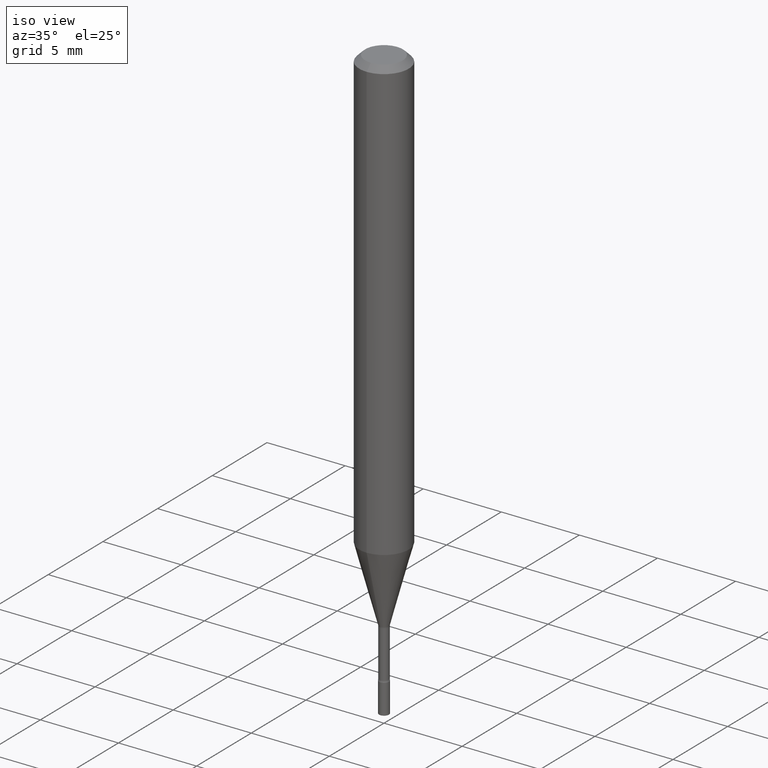
[diagram: clean part render]
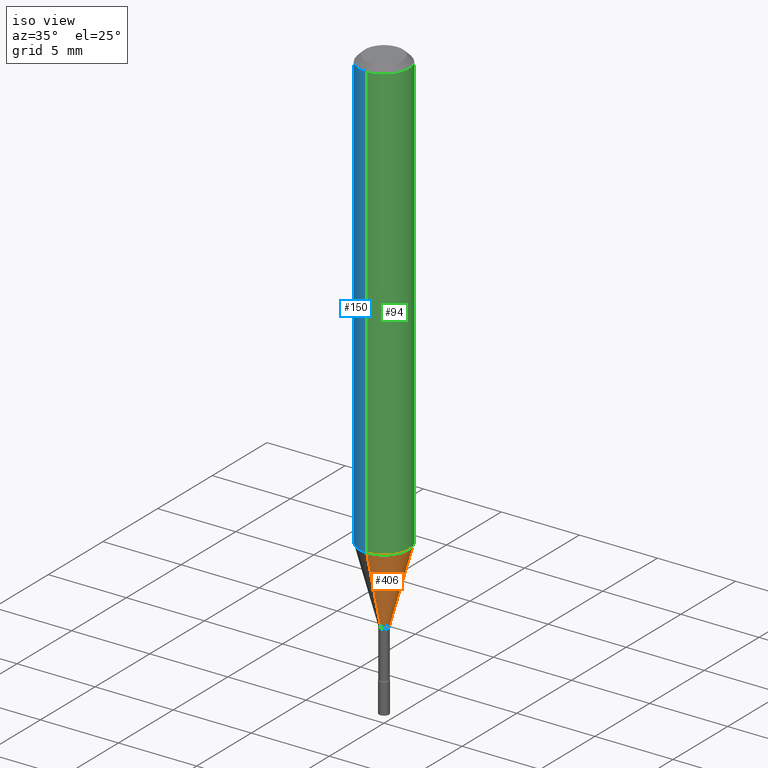
[diagram: same view with three faces highlighted in distinct colors, each labeled with its STEP entity id]
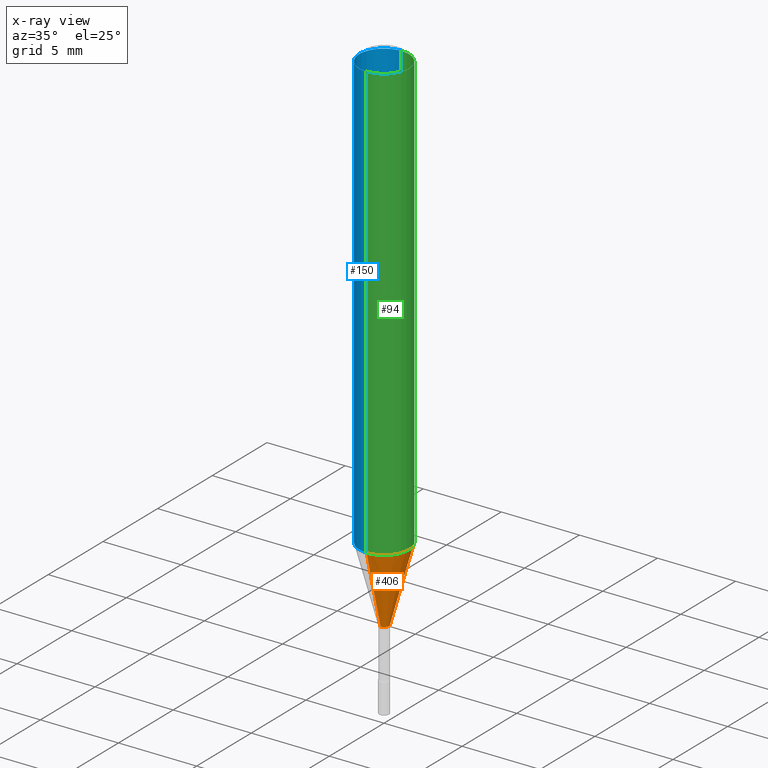
[diagram: x-ray of the same camera — body ghosted, the three highlighted faces saturated]
A machine part, iso view with three faces highlighted in distinct colors.
The next image is the same camera in x-ray (body ghosted, the three faces saturated) — at least one of them is partly hidden behind the body in this view.
Their STEP definitions:

[orange] entity #406 — the highlighted conical surface has half-angle 15 deg.
#14 = EDGE_LOOP ( 'NONE', ( #29, #400, #425, #182 ) ) ;
#15 = DIRECTION ( 'NONE',  ( -2.445346016029371458E-29, 3.491657181334983134E-15, 1.000000000000000000 ) ) ;
#20 = CIRCLE ( 'NONE', #503, 0.06250000000000000000 ) ;
#29 = ORIENTED_EDGE ( 'NONE', *, *, #444, .T. ) ;
#33 = LINE ( 'NONE', #477, #372 ) ;
#95 = FACE_OUTER_BOUND ( 'NONE', #14, .T. ) ;
#125 = VECTOR ( 'NONE', #511, 39.37007874015748143 ) ;
#128 = VERTEX_POINT ( 'NONE', #282 ) ;
#130 = EDGE_CURVE ( 'NONE', #128, #288, #167, .T. ) ;
#142 = DIRECTION ( 'NONE',  ( -6.982962677686265922E-15, -1.000000000000000000, 4.370956789862821150E-15 ) ) ;
#167 = LINE ( 'NONE', #209, #125 ) ;
#173 = VERTEX_POINT ( 'NONE', #321 ) ;
#182 = ORIENTED_EDGE ( 'NONE', *, *, #130, .F. ) ;
#186 = EDGE_CURVE ( 'NONE', #173, #437, #33, .T. ) ;
#187 = CARTESIAN_POINT ( 'NONE',  ( 3.174285327683107935E-29, -4.532494005902626170E-15, -1.298092501787273090 ) ) ;
#209 = CARTESIAN_POINT ( 'NONE',  ( -8.561889171222843884E-17, -0.01226111260566851470, -1.298092501787273090 ) ) ;
#243 = DIRECTION ( 'NONE',  ( 1.839019923739597949E-15, 0.2588190451025246253, 0.9659258262890670910 ) ) ;
#251 = AXIS2_PLACEMENT_3D ( 'NONE', #484, #15, #492 ) ;
#268 = DIRECTION ( 'NONE',  ( -2.445346016029371458E-29, 3.491657181334983134E-15, 1.000000000000000000 ) ) ;
#275 = CIRCLE ( 'NONE', #341, 0.01226111260566398187 ) ;
#276 = CONICAL_SURFACE ( 'NONE', #251, 0.01226111260566398187, 0.2617993877991499629 ) ;
#282 = CARTESIAN_POINT ( 'NONE',  ( -8.561889171222843884E-17, -0.01226111260566851470, -1.298092501787273090 ) ) ;
#288 = VERTEX_POINT ( 'NONE', #333 ) ;
#312 = DIRECTION ( 'NONE',  ( -6.982962677686265133E-15, -1.000000000000000000, 0.000000000000000000 ) ) ;
#321 = CARTESIAN_POINT ( 'NONE',  ( 2.656048273965166204E-16, 0.01226111260565944903, -1.298092501787273090 ) ) ;
#333 = CARTESIAN_POINT ( 'NONE',  ( -4.364351673553645523E-16, -0.06250000000000388578, -1.110598421515879730 ) ) ;
#341 = AXIS2_PLACEMENT_3D ( 'NONE', #187, #268, #312 ) ;
#352 = CARTESIAN_POINT ( 'NONE',  ( 2.715797425462365486E-29, -3.877828954065218301E-15, -1.110598421515879952 ) ) ;
#353 = DIRECTION ( 'NONE',  ( -2.445346016029371458E-29, 3.491657181334983134E-15, 1.000000000000000000 ) ) ;
#369 = CARTESIAN_POINT ( 'NONE',  ( 4.440892098500896347E-16, 0.06249999999999612116, -1.110598421515880174 ) ) ;
#372 = VECTOR ( 'NONE', #243, 39.37007874015748854 ) ;
#400 = ORIENTED_EDGE ( 'NONE', *, *, #186, .T. ) ;
#406 = ADVANCED_FACE ( 'NONE', ( #95 ), #276, .T. ) ;
#425 = ORIENTED_EDGE ( 'NONE', *, *, #509, .F. ) ;
#437 = VERTEX_POINT ( 'NONE', #369 ) ;
#444 = EDGE_CURVE ( 'NONE', #128, #173, #275, .T. ) ;
#477 = CARTESIAN_POINT ( 'NONE',  ( 8.712044494294308837E-17, 0.01226111260565944903, -1.298092501787273090 ) ) ;
#484 = CARTESIAN_POINT ( 'NONE',  ( 3.174285327683107935E-29, -4.532494005902626170E-15, -1.298092501787273090 ) ) ;
#492 = DIRECTION ( 'NONE',  ( -6.982962677686265133E-15, -1.000000000000000000, 0.000000000000000000 ) ) ;
#503 = AXIS2_PLACEMENT_3D ( 'NONE', #352, #353, #142 ) ;
#509 = EDGE_CURVE ( 'NONE', #288, #437, #20, .T. ) ;
#511 = DIRECTION ( 'NONE',  ( -1.807323732225328167E-15, -0.2588190451025179084, 0.9659258262890690894 ) ) ;

[blue] entity #150 — the highlighted cylindrical surface (edge-blend (fillet) strip) has radius 1.5875 mm, axis along (-0, 0, 1).
#13 = LINE ( 'NONE', #134, #103 ) ;
#30 = DIRECTION ( 'NONE',  ( -2.445346016029371458E-29, 3.491657181334983134E-15, 1.000000000000000000 ) ) ;
#44 = CIRCLE ( 'NONE', #399, 0.06250000000000000000 ) ;
#60 = DIRECTION ( 'NONE',  ( -6.982962677686265922E-15, -1.000000000000000000, 4.370956789862821150E-15 ) ) ;
#61 = ORIENTED_EDGE ( 'NONE', *, *, #293, .F. ) ;
#65 = CARTESIAN_POINT ( 'NONE',  ( -4.364351673553912750E-16, -0.06250000000000005551, -0.01499999999999981209 ) ) ;
#91 = ORIENTED_EDGE ( 'NONE', *, *, #426, .T. ) ;
#97 = VECTOR ( 'NONE', #215, 39.37007874015748143 ) ;
#103 = VECTOR ( 'NONE', #304, 39.37007874015748143 ) ;
#120 = EDGE_LOOP ( 'NONE', ( #61, #216, #91, #140 ) ) ;
#134 = CARTESIAN_POINT ( 'NONE',  ( -4.364351673553916201E-16, -0.06250000000000000000, 2.182285738334364459E-16 ) ) ;
#140 = ORIENTED_EDGE ( 'NONE', *, *, #255, .F. ) ;
#144 = CARTESIAN_POINT ( 'NONE',  ( 2.715797425462365486E-29, -3.877828954065218301E-15, -1.110598421515879952 ) ) ;
#150 = ADVANCED_FACE ( 'NONE', ( #514 ), #517, .T. ) ;
#160 = DIRECTION ( 'NONE',  ( -2.445346016029371458E-29, 3.491657181334983134E-15, 1.000000000000000000 ) ) ;
#179 = CARTESIAN_POINT ( 'NONE',  ( 4.440892098500625669E-16, 0.06250000000000000000, -2.182285738334364459E-16 ) ) ;
#204 = AXIS2_PLACEMENT_3D ( 'NONE', #446, #160, #280 ) ;
#215 = DIRECTION ( 'NONE',  ( -2.445346016029371178E-29, 3.491657181334983134E-15, 1.000000000000000000 ) ) ;
#216 = ORIENTED_EDGE ( 'NONE', *, *, #481, .T. ) ;
#217 = LINE ( 'NONE', #179, #97 ) ;
#239 = DIRECTION ( 'NONE',  ( -2.445346016029371458E-29, 3.491657181334983134E-15, 1.000000000000000000 ) ) ;
#253 = CARTESIAN_POINT ( 'NONE',  ( 4.440892098500899305E-16, 0.06249999999999995143, -0.01500000000000024751 ) ) ;
#255 = EDGE_CURVE ( 'NONE', #329, #452, #44, .T. ) ;
#258 = CIRCLE ( 'NONE', #473, 0.06250000000000000000 ) ;
#280 = DIRECTION ( 'NONE',  ( -6.982962677686265922E-15, -1.000000000000000000, 3.491657181334983134E-15 ) ) ;
#288 = VERTEX_POINT ( 'NONE', #333 ) ;
#291 = DIRECTION ( 'NONE',  ( -6.982962677686265922E-15, -1.000000000000000000, 3.483106191921935554E-15 ) ) ;
#293 = EDGE_CURVE ( 'NONE', #437, #329, #217, .T. ) ;
#304 = DIRECTION ( 'NONE',  ( -2.445346016029371178E-29, 3.491657181334983134E-15, 1.000000000000000000 ) ) ;
#329 = VERTEX_POINT ( 'NONE', #253 ) ;
#333 = CARTESIAN_POINT ( 'NONE',  ( -4.364351673553645523E-16, -0.06250000000000388578, -1.110598421515879730 ) ) ;
#369 = CARTESIAN_POINT ( 'NONE',  ( 4.440892098500896347E-16, 0.06249999999999612116, -1.110598421515880174 ) ) ;
#399 = AXIS2_PLACEMENT_3D ( 'NONE', #482, #239, #291 ) ;
#426 = EDGE_CURVE ( 'NONE', #288, #452, #13, .T. ) ;
#437 = VERTEX_POINT ( 'NONE', #369 ) ;
#446 = CARTESIAN_POINT ( 'NONE',  ( 0.000000000000000000, 0.000000000000000000, 0.000000000000000000 ) ) ;
#452 = VERTEX_POINT ( 'NONE', #65 ) ;
#473 = AXIS2_PLACEMENT_3D ( 'NONE', #144, #30, #60 ) ;
#481 = EDGE_CURVE ( 'NONE', #437, #288, #258, .T. ) ;
#482 = CARTESIAN_POINT ( 'NONE',  ( 3.668019024044063825E-31, -5.237485772002485746E-17, -0.01500000000000003067 ) ) ;
#514 = FACE_OUTER_BOUND ( 'NONE', #120, .T. ) ;
#517 = CYLINDRICAL_SURFACE ( 'NONE', #204, 0.06250000000000000000 ) ;

[green] entity #94 — the highlighted cylindrical surface (edge-blend (fillet) strip) has radius 1.5875 mm, axis along (-0, 0, 1).
#2 = CIRCLE ( 'NONE', #350, 0.06250000000000000000 ) ;
#7 = ORIENTED_EDGE ( 'NONE', *, *, #293, .T. ) ;
#13 = LINE ( 'NONE', #134, #103 ) ;
#20 = CIRCLE ( 'NONE', #503, 0.06250000000000000000 ) ;
#53 = ORIENTED_EDGE ( 'NONE', *, *, #426, .F. ) ;
#65 = CARTESIAN_POINT ( 'NONE',  ( -4.364351673553912750E-16, -0.06250000000000005551, -0.01499999999999981209 ) ) ;
#94 = ADVANCED_FACE ( 'NONE', ( #267 ), #107, .T. ) ;
#97 = VECTOR ( 'NONE', #215, 39.37007874015748143 ) ;
#103 = VECTOR ( 'NONE', #304, 39.37007874015748143 ) ;
#107 = CYLINDRICAL_SURFACE ( 'NONE', #429, 0.06250000000000000000 ) ;
#134 = CARTESIAN_POINT ( 'NONE',  ( -4.364351673553916201E-16, -0.06250000000000000000, 2.182285738334364459E-16 ) ) ;
#142 = DIRECTION ( 'NONE',  ( -6.982962677686265922E-15, -1.000000000000000000, 4.370956789862821150E-15 ) ) ;
#179 = CARTESIAN_POINT ( 'NONE',  ( 4.440892098500625669E-16, 0.06250000000000000000, -2.182285738334364459E-16 ) ) ;
#196 = EDGE_CURVE ( 'NONE', #452, #329, #2, .T. ) ;
#215 = DIRECTION ( 'NONE',  ( -2.445346016029371178E-29, 3.491657181334983134E-15, 1.000000000000000000 ) ) ;
#217 = LINE ( 'NONE', #179, #97 ) ;
#230 = DIRECTION ( 'NONE',  ( -2.445346016029371458E-29, 3.491657181334983134E-15, 1.000000000000000000 ) ) ;
#249 = DIRECTION ( 'NONE',  ( -2.445346016029371458E-29, 3.491657181334983134E-15, 1.000000000000000000 ) ) ;
#253 = CARTESIAN_POINT ( 'NONE',  ( 4.440892098500899305E-16, 0.06249999999999995143, -0.01500000000000024751 ) ) ;
#267 = FACE_OUTER_BOUND ( 'NONE', #485, .T. ) ;
#272 = CARTESIAN_POINT ( 'NONE',  ( 0.000000000000000000, 0.000000000000000000, 0.000000000000000000 ) ) ;
#288 = VERTEX_POINT ( 'NONE', #333 ) ;
#293 = EDGE_CURVE ( 'NONE', #437, #329, #217, .T. ) ;
#304 = DIRECTION ( 'NONE',  ( -2.445346016029371178E-29, 3.491657181334983134E-15, 1.000000000000000000 ) ) ;
#329 = VERTEX_POINT ( 'NONE', #253 ) ;
#333 = CARTESIAN_POINT ( 'NONE',  ( -4.364351673553645523E-16, -0.06250000000000388578, -1.110598421515879730 ) ) ;
#350 = AXIS2_PLACEMENT_3D ( 'NONE', #402, #249, #479 ) ;
#352 = CARTESIAN_POINT ( 'NONE',  ( 2.715797425462365486E-29, -3.877828954065218301E-15, -1.110598421515879952 ) ) ;
#353 = DIRECTION ( 'NONE',  ( -2.445346016029371458E-29, 3.491657181334983134E-15, 1.000000000000000000 ) ) ;
#369 = CARTESIAN_POINT ( 'NONE',  ( 4.440892098500896347E-16, 0.06249999999999612116, -1.110598421515880174 ) ) ;
#370 = ORIENTED_EDGE ( 'NONE', *, *, #509, .T. ) ;
#390 = DIRECTION ( 'NONE',  ( -6.982962677686265922E-15, -1.000000000000000000, 3.491657181334983134E-15 ) ) ;
#402 = CARTESIAN_POINT ( 'NONE',  ( 3.668019024044063825E-31, -5.237485772002485746E-17, -0.01500000000000003067 ) ) ;
#426 = EDGE_CURVE ( 'NONE', #288, #452, #13, .T. ) ;
#429 = AXIS2_PLACEMENT_3D ( 'NONE', #272, #230, #390 ) ;
#437 = VERTEX_POINT ( 'NONE', #369 ) ;
#452 = VERTEX_POINT ( 'NONE', #65 ) ;
#479 = DIRECTION ( 'NONE',  ( -6.982962677686265922E-15, -1.000000000000000000, 3.483106191921935554E-15 ) ) ;
#485 = EDGE_LOOP ( 'NONE', ( #370, #7, #507, #53 ) ) ;
#503 = AXIS2_PLACEMENT_3D ( 'NONE', #352, #353, #142 ) ;
#507 = ORIENTED_EDGE ( 'NONE', *, *, #196, .F. ) ;
#509 = EDGE_CURVE ( 'NONE', #288, #437, #20, .T. ) ;